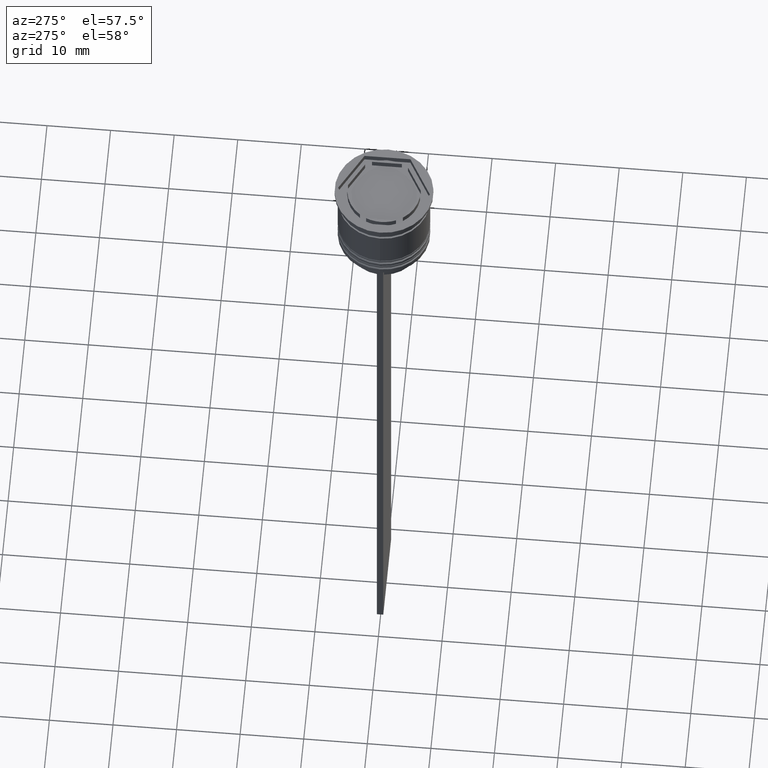
[diagram: clean part render]
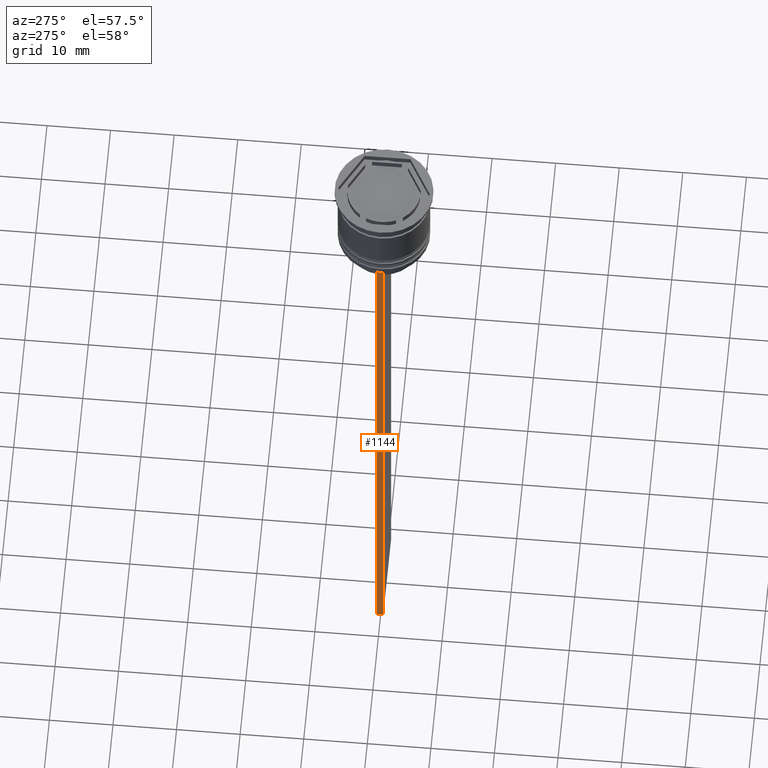
[diagram: same view with one face highlighted and labeled with its STEP entity id]
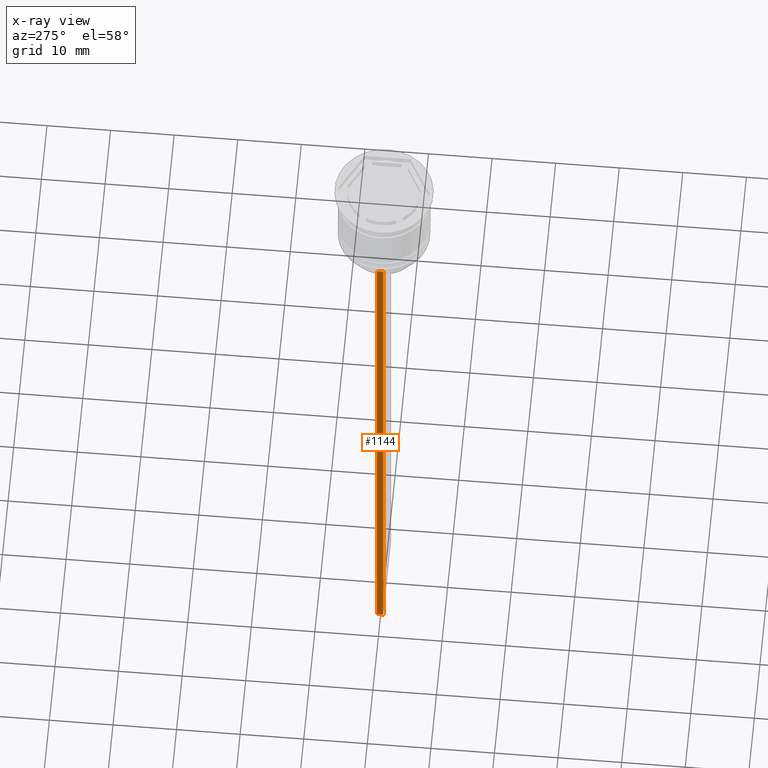
[diagram: x-ray of the same camera — body ghosted, the highlighted face saturated]
A machine part, auxiliary view. The second image highlights one B-rep face of the part: STEP entity #1144.
The next image is the same camera in x-ray: the body ghosted, the highlighted face saturated — about 0% of this face is hidden behind the body in this view.
In plain terms, the highlighted planar face has unit normal (-1, 0, 0).
Its self-contained STEP definition (entity closure, byte-faithful):
#111 = VERTEX_POINT ( 'NONE', #1958 ) ;
#222 = LINE ( 'NONE', #1293, #733 ) ;
#254 = DIRECTION ( 'NONE',  ( 0.000000000000000000, 1.000000000000000000, 0.000000000000000000 ) ) ;
#312 = DIRECTION ( 'NONE',  ( -1.000000000000000000, 0.000000000000000000, 0.000000000000000000 ) ) ;
#482 = CARTESIAN_POINT ( 'NONE',  ( -6.999999999999987566, -0.5000000000000022204, 1.535668847618198329 ) ) ;
#572 = LINE ( 'NONE', #1457, #1521 ) ;
#603 = EDGE_LOOP ( 'NONE', ( #1530, #1917, #1445, #2194 ) ) ;
#733 = VECTOR ( 'NONE', #926, 1000.000000000000000 ) ;
#752 = EDGE_CURVE ( 'NONE', #1683, #2234, #222, .T. ) ;
#772 = EDGE_CURVE ( 'NONE', #111, #1179, #2195, .T. ) ;
#926 = DIRECTION ( 'NONE',  ( 0.000000000000000000, 0.000000000000000000, -1.000000000000000000 ) ) ;
#1048 = AXIS2_PLACEMENT_3D ( 'NONE', #482, #312, #1573 ) ;
#1144 = ADVANCED_FACE ( 'NONE', ( #1385 ), #2096, .T. ) ;
#1148 = LINE ( 'NONE', #1661, #2236 ) ;
#1179 = VERTEX_POINT ( 'NONE', #1787 ) ;
#1283 = CARTESIAN_POINT ( 'NONE',  ( -6.999999999999987566, 0.4999999999999978351, 1.535668847618198329 ) ) ;
#1293 = CARTESIAN_POINT ( 'NONE',  ( -6.999999999999987566, -0.5000000000000022204, 1.535668847618198329 ) ) ;
#1385 = FACE_OUTER_BOUND ( 'NONE', #603, .T. ) ;
#1445 = ORIENTED_EDGE ( 'NONE', *, *, #1811, .F. ) ;
#1457 = CARTESIAN_POINT ( 'NONE',  ( -6.999999999999987566, -0.5000000000000022204, -12.50000000000000000 ) ) ;
#1469 = CARTESIAN_POINT ( 'NONE',  ( -6.999999999999987566, -0.5000000000000022204, -112.5000000000000000 ) ) ;
#1494 = DIRECTION ( 'NONE',  ( 0.000000000000000000, 0.000000000000000000, -1.000000000000000000 ) ) ;
#1521 = VECTOR ( 'NONE', #2198, 1000.000000000000000 ) ;
#1530 = ORIENTED_EDGE ( 'NONE', *, *, #2248, .F. ) ;
#1573 = DIRECTION ( 'NONE',  ( 0.000000000000000000, 0.000000000000000000, 1.000000000000000000 ) ) ;
#1661 = CARTESIAN_POINT ( 'NONE',  ( -6.999999999999987566, -0.5000000000000022204, -112.5000000000000000 ) ) ;
#1683 = VERTEX_POINT ( 'NONE', #1804 ) ;
#1787 = CARTESIAN_POINT ( 'NONE',  ( -6.999999999999987566, 0.4999999999999978351, -112.5000000000000000 ) ) ;
#1804 = CARTESIAN_POINT ( 'NONE',  ( -6.999999999999987566, -0.5000000000000022204, -12.50000000000000000 ) ) ;
#1811 = EDGE_CURVE ( 'NONE', #2234, #1179, #1148, .T. ) ;
#1917 = ORIENTED_EDGE ( 'NONE', *, *, #772, .T. ) ;
#1958 = CARTESIAN_POINT ( 'NONE',  ( -6.999999999999987566, 0.4999999999999980571, -12.50000000000000000 ) ) ;
#2096 = PLANE ( 'NONE',  #1048 ) ;
#2174 = VECTOR ( 'NONE', #1494, 1000.000000000000000 ) ;
#2194 = ORIENTED_EDGE ( 'NONE', *, *, #752, .F. ) ;
#2195 = LINE ( 'NONE', #1283, #2174 ) ;
#2198 = DIRECTION ( 'NONE',  ( 0.000000000000000000, -1.000000000000000000, 0.000000000000000000 ) ) ;
#2234 = VERTEX_POINT ( 'NONE', #1469 ) ;
#2236 = VECTOR ( 'NONE', #254, 1000.000000000000000 ) ;
#2248 = EDGE_CURVE ( 'NONE', #111, #1683, #572, .T. ) ;